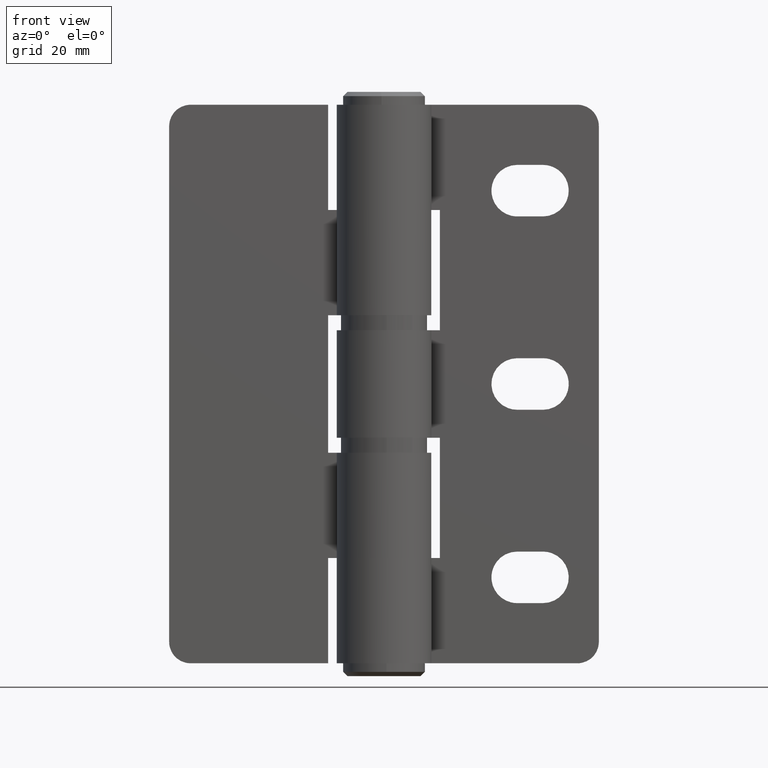
[diagram: clean part render]
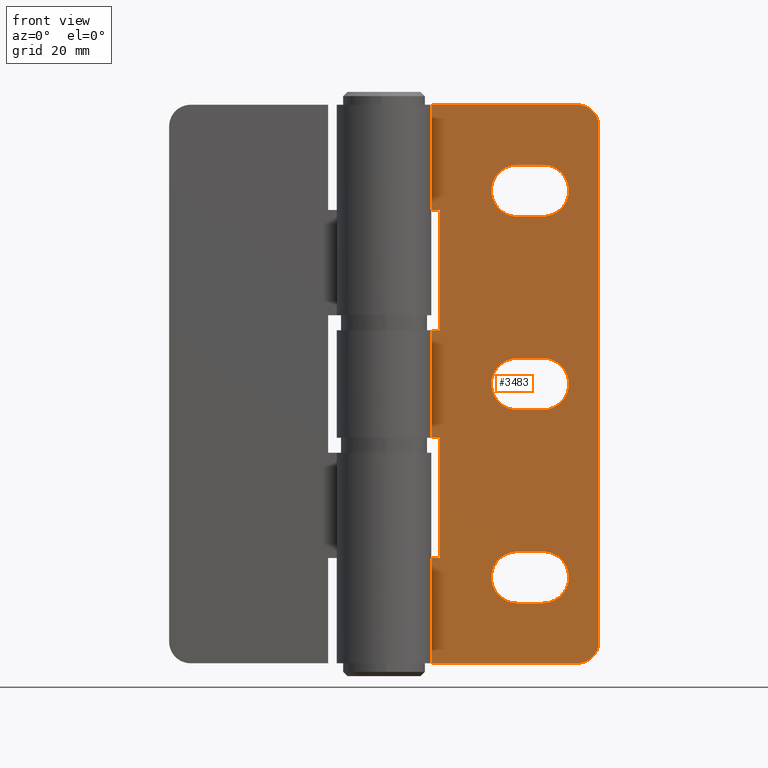
[diagram: same view with one face highlighted and labeled with its STEP entity id]
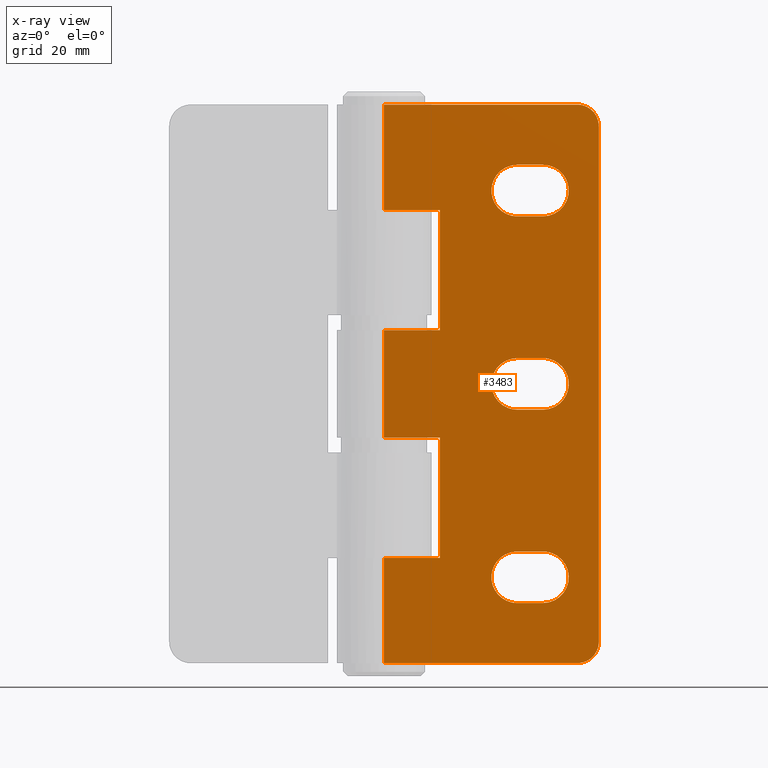
[diagram: x-ray of the same camera — body ghosted, the highlighted face saturated]
A machine part, front view. The second image highlights one B-rep face of the part: STEP entity #3483.
The next image is the same camera in x-ray: the body ghosted, the highlighted face saturated — about 0% of this face is hidden behind the body in this view.
In plain terms, the highlighted face is a freeform B-spline surface patch.
Its self-contained STEP definition (entity closure, byte-faithful):
#2173=CARTESIAN_POINT('',(-8.881784E-016,6.0,77.500000000000000));
#2174=VERTEX_POINT('',#2173);
#2175=CARTESIAN_POINT('',(13.0,6.0,77.500000000000000));
#2176=VERTEX_POINT('',#2175);
#2177=CARTESIAN_POINT('',(-8.881784E-016,6.0,77.500000000000000));
#2178=CARTESIAN_POINT('',(13.0,6.0,77.500000000000000));
#2179=QUASI_UNIFORM_CURVE('',1,(#2177,#2178),.UNSPECIFIED.,.F.,.U.);
#2180=EDGE_CURVE('',#2174,#2176,#2179,.T.);
#2251=CARTESIAN_POINT('',(13.0,6.0,105.500000000000000));
#2252=VERTEX_POINT('',#2251);
#2253=CARTESIAN_POINT('',(13.0,6.0,77.500000000000000));
#2254=CARTESIAN_POINT('',(13.0,6.0,105.500000000000000));
#2255=QUASI_UNIFORM_CURVE('',1,(#2253,#2254),.UNSPECIFIED.,.F.,.U.);
#2256=EDGE_CURVE('',#2176,#2252,#2255,.T.);
#2279=CARTESIAN_POINT('',(-8.881784E-016,6.0,105.500000000000000));
#2280=VERTEX_POINT('',#2279);
#2281=CARTESIAN_POINT('',(13.0,6.0,105.500000000000000));
#2282=CARTESIAN_POINT('',(-8.881784E-016,6.0,105.500000000000000));
#2283=QUASI_UNIFORM_CURVE('',1,(#2281,#2282),.UNSPECIFIED.,.F.,.U.);
#2284=EDGE_CURVE('',#2252,#2280,#2283,.T.);
#2379=CARTESIAN_POINT('',(-8.881784E-016,6.0,24.500000000000000));
#2380=VERTEX_POINT('',#2379);
#2400=CARTESIAN_POINT('',(13.0,6.0,24.500000000000000));
#2401=VERTEX_POINT('',#2400);
#2402=CARTESIAN_POINT('',(-8.881784E-016,6.0,24.500000000000000));
#2403=CARTESIAN_POINT('',(13.0,6.0,24.500000000000000));
#2404=QUASI_UNIFORM_CURVE('',1,(#2402,#2403),.UNSPECIFIED.,.F.,.U.);
#2405=EDGE_CURVE('',#2380,#2401,#2404,.T.);
#2427=CARTESIAN_POINT('',(13.0,6.0,52.500000000000000));
#2428=VERTEX_POINT('',#2427);
#2429=CARTESIAN_POINT('',(13.0,6.0,24.500000000000000));
#2430=CARTESIAN_POINT('',(13.0,6.0,52.500000000000000));
#2431=QUASI_UNIFORM_CURVE('',1,(#2429,#2430),.UNSPECIFIED.,.F.,.U.);
#2432=EDGE_CURVE('',#2401,#2428,#2431,.T.);
#2455=CARTESIAN_POINT('',(-8.881784E-016,6.0,52.500000000000000));
#2456=VERTEX_POINT('',#2455);
#2457=CARTESIAN_POINT('',(13.0,6.0,52.500000000000000));
#2458=CARTESIAN_POINT('',(-8.881784E-016,6.0,52.500000000000000));
#2459=QUASI_UNIFORM_CURVE('',1,(#2457,#2458),.UNSPECIFIED.,.F.,.U.);
#2460=EDGE_CURVE('',#2428,#2456,#2459,.T.);
#2557=CARTESIAN_POINT('',(37.0,6.0,104.0));
#2558=VERTEX_POINT('',#2557);
#2564=CARTESIAN_POINT('',(36.999999685840748,6.0,116.0));
#2565=VERTEX_POINT('',#2564);
#2566=CARTESIAN_POINT('',(37.0,6.0,104.0));
#2567=CARTESIAN_POINT('',(40.464101684950919,6.0,103.999999999999990));
#2568=CARTESIAN_POINT('',(42.196152475066498,6.0,107.000000090689990));
#2569=CARTESIAN_POINT('',(43.928203265182105,6.0,110.000000181379950));
#2570=CARTESIAN_POINT('',(42.196152317986872,6.0,113.000000181379900));
#2571=CARTESIAN_POINT('',(40.464101370791653,6.0,116.000000181379890));
#2572=CARTESIAN_POINT('',(36.999999685840748,6.0,116.0));
#2580=(BOUNDED_CURVE()B_SPLINE_CURVE(2,(#2566,#2567,#2568,#2569,#2570,#2571,#2572),.UNSPECIFIED.,.F.,.U.)B_SPLINE_CURVE_WITH_KNOTS((3,2,2,3),(0.0,0.333333333333333,0.666666666666667,1.0),.UNSPECIFIED.)CURVE()GEOMETRIC_REPRESENTATION_ITEM()RATIONAL_B_SPLINE_CURVE((1.0,0.866025399421116,1.0,0.866025399421116,1.0,0.866025399421116,1.0))REPRESENTATION_ITEM(''));
#2581=EDGE_CURVE('',#2558,#2565,#2580,.T.);
#2603=CARTESIAN_POINT('',(31.000000104719749,6.0,104.0));
#2604=VERTEX_POINT('',#2603);
#2610=CARTESIAN_POINT('',(31.000000104719749,6.0,104.0));
#2611=CARTESIAN_POINT('',(37.0,6.0,104.0));
#2612=QUASI_UNIFORM_CURVE('',1,(#2610,#2611),.UNSPECIFIED.,.F.,.U.);
#2613=EDGE_CURVE('',#2604,#2558,#2612,.T.);
#2654=CARTESIAN_POINT('',(30.999999685840748,6.0,116.0));
#2655=VERTEX_POINT('',#2654);
#2661=CARTESIAN_POINT('',(30.999999685840748,6.0,116.0));
#2662=CARTESIAN_POINT('',(24.999999790560516,6.000000000000001,115.999999685840750));
#2663=CARTESIAN_POINT('',(25.0,6.0,109.999999790560490));
#2664=CARTESIAN_POINT('',(25.000000209439499,6.000000000000001,103.999999895280250));
#2665=CARTESIAN_POINT('',(31.000000104719749,6.0,104.0));
#2673=(BOUNDED_CURVE()B_SPLINE_CURVE(2,(#2661,#2662,#2663,#2664,#2665),.UNSPECIFIED.,.F.,.U.)B_SPLINE_CURVE_WITH_KNOTS((3,2,3),(0.0,0.500000000000000,1.0),.UNSPECIFIED.)CURVE()GEOMETRIC_REPRESENTATION_ITEM()RATIONAL_B_SPLINE_CURVE((1.0,0.707106787357218,1.0,0.707106787357218,1.0))REPRESENTATION_ITEM(''));
#2674=EDGE_CURVE('',#2655,#2604,#2673,.T.);
#2691=CARTESIAN_POINT('',(36.999999685840748,6.0,116.0));
#2692=CARTESIAN_POINT('',(30.999999685840748,6.0,116.0));
#2693=QUASI_UNIFORM_CURVE('',1,(#2691,#2692),.UNSPECIFIED.,.F.,.U.);
#2694=EDGE_CURVE('',#2565,#2655,#2693,.T.);
#2714=CARTESIAN_POINT('',(31.000000104719749,6.0,59.0));
#2715=VERTEX_POINT('',#2714);
#2721=CARTESIAN_POINT('',(37.0,6.0,59.0));
#2722=VERTEX_POINT('',#2721);
#2723=CARTESIAN_POINT('',(31.000000104719749,6.0,59.0));
#2724=CARTESIAN_POINT('',(37.0,6.0,59.0));
#2725=QUASI_UNIFORM_CURVE('',1,(#2723,#2724),.UNSPECIFIED.,.F.,.U.);
#2726=EDGE_CURVE('',#2715,#2722,#2725,.T.);
#2773=CARTESIAN_POINT('',(31.0,6.0,71.0));
#2774=VERTEX_POINT('',#2773);
#2780=CARTESIAN_POINT('',(31.0,6.0,71.000000000000014));
#2781=CARTESIAN_POINT('',(27.535898361591190,6.000000000000001,71.000000000000014));
#2782=CARTESIAN_POINT('',(25.803847559840079,6.0,67.999999969770016));
#2783=CARTESIAN_POINT('',(24.071796758088958,6.000000000000001,64.999999939540047));
#2784=CARTESIAN_POINT('',(25.803847612199949,6.0,61.999999939540032));
#2785=CARTESIAN_POINT('',(27.535898466310933,6.000000000000001,58.999999939540018));
#2786=CARTESIAN_POINT('',(31.000000104719749,6.0,59.000000000000007));
#2794=(BOUNDED_CURVE()B_SPLINE_CURVE(2,(#2780,#2781,#2782,#2783,#2784,#2785,#2786),.UNSPECIFIED.,.F.,.U.)B_SPLINE_CURVE_WITH_KNOTS((3,2,2,3),(0.0,0.333333333333333,0.666666666666667,1.0),.UNSPECIFIED.)CURVE()GEOMETRIC_REPRESENTATION_ITEM()RATIONAL_B_SPLINE_CURVE((1.0,0.866025402329998,1.0,0.866025402329998,1.0,0.866025402329998,1.0))REPRESENTATION_ITEM(''));
#2795=EDGE_CURVE('',#2774,#2715,#2794,.T.);
#2813=CARTESIAN_POINT('',(37.0,6.0,71.0));
#2814=VERTEX_POINT('',#2813);
#2820=CARTESIAN_POINT('',(37.0,6.0,71.0));
#2821=CARTESIAN_POINT('',(31.0,6.0,71.0));
#2822=QUASI_UNIFORM_CURVE('',1,(#2820,#2821),.UNSPECIFIED.,.F.,.U.);
#2823=EDGE_CURVE('',#2814,#2774,#2822,.T.);
#2863=CARTESIAN_POINT('',(37.0,6.0,59.000000000000007));
#2864=CARTESIAN_POINT('',(42.999999999999993,6.0,59.0));
#2865=CARTESIAN_POINT('',(43.0,6.0,65.0));
#2866=CARTESIAN_POINT('',(42.999999999999993,6.0,71.000000000000014));
#2867=CARTESIAN_POINT('',(37.0,6.0,71.000000000000014));
#2875=(BOUNDED_CURVE()B_SPLINE_CURVE(2,(#2863,#2864,#2865,#2866,#2867),.UNSPECIFIED.,.F.,.U.)B_SPLINE_CURVE_WITH_KNOTS((3,2,3),(0.0,0.500000000000000,1.0),.UNSPECIFIED.)CURVE()GEOMETRIC_REPRESENTATION_ITEM()RATIONAL_B_SPLINE_CURVE((1.0,0.707106781186548,1.0,0.707106781186548,1.0))REPRESENTATION_ITEM(''));
#2876=EDGE_CURVE('',#2722,#2814,#2875,.T.);
#2919=CARTESIAN_POINT('',(30.999999685840748,6.0,26.0));
#2920=VERTEX_POINT('',#2919);
#2926=CARTESIAN_POINT('',(31.0,6.0,14.0));
#2927=VERTEX_POINT('',#2926);
#2928=CARTESIAN_POINT('',(30.999999685840748,6.0,25.999999999999989));
#2929=CARTESIAN_POINT('',(24.999999842920381,6.000000000000001,25.999999685840752));
#2930=CARTESIAN_POINT('',(25.0,6.0,19.999999842920381));
#2931=CARTESIAN_POINT('',(25.000000157079619,6.000000000000001,13.999999999999998));
#2932=CARTESIAN_POINT('',(31.0,6.0,14.0));
#2940=(BOUNDED_CURVE()B_SPLINE_CURVE(2,(#2928,#2929,#2930,#2931,#2932),.UNSPECIFIED.,.F.,.U.)B_SPLINE_CURVE_WITH_KNOTS((3,2,3),(0.0,0.500000000000000,1.0),.UNSPECIFIED.)CURVE()GEOMETRIC_REPRESENTATION_ITEM()RATIONAL_B_SPLINE_CURVE((1.0,0.707106790442553,1.0,0.707106790442553,1.0))REPRESENTATION_ITEM(''));
#2941=EDGE_CURVE('',#2920,#2927,#2940,.T.);
#2964=CARTESIAN_POINT('',(36.999999685840748,6.0,14.0));
#2965=VERTEX_POINT('',#2964);
#2966=CARTESIAN_POINT('',(36.999999685840748,6.0,14.0));
#2967=CARTESIAN_POINT('',(31.0,6.0,14.0));
#2968=QUASI_UNIFORM_CURVE('',1,(#2966,#2967),.UNSPECIFIED.,.F.,.U.);
#2969=EDGE_CURVE('',#2965,#2927,#2968,.T.);
#3017=CARTESIAN_POINT('',(36.999999685840748,6.0,26.0));
#3018=VERTEX_POINT('',#3017);
#3019=CARTESIAN_POINT('',(36.999999685840748,6.0,14.000000000000011));
#3020=CARTESIAN_POINT('',(40.464101440604850,6.000000000000001,13.999999818620079));
#3021=CARTESIAN_POINT('',(42.196152370346752,6.0,16.999999909310041));
#3022=CARTESIAN_POINT('',(43.928203300088676,6.000000000000001,19.999999999999993));
#3023=CARTESIAN_POINT('',(42.196152370346752,6.0,23.000000090689959));
#3024=CARTESIAN_POINT('',(40.464101440604850,6.000000000000001,26.000000181379924));
#3025=CARTESIAN_POINT('',(36.999999685840748,6.0,25.999999999999989));
#3033=(BOUNDED_CURVE()B_SPLINE_CURVE(2,(#3019,#3020,#3021,#3022,#3023,#3024,#3025),.UNSPECIFIED.,.F.,.U.)B_SPLINE_CURVE_WITH_KNOTS((3,2,2,3),(0.0,0.333333333333333,0.666666666666667,1.0),.UNSPECIFIED.)CURVE()GEOMETRIC_REPRESENTATION_ITEM()RATIONAL_B_SPLINE_CURVE((1.0,0.866025395057793,1.0,0.866025395057793,1.0,0.866025395057793,1.0))REPRESENTATION_ITEM(''));
#3034=EDGE_CURVE('',#2965,#3018,#3033,.T.);
#3055=CARTESIAN_POINT('',(30.999999685840748,6.0,26.0));
#3056=CARTESIAN_POINT('',(36.999999685840748,6.0,26.0));
#3057=QUASI_UNIFORM_CURVE('',1,(#3055,#3056),.UNSPECIFIED.,.F.,.U.);
#3058=EDGE_CURVE('',#2920,#3018,#3057,.T.);
#3095=CARTESIAN_POINT('',(50.0,6.0,5.0));
#3096=VERTEX_POINT('',#3095);
#3102=CARTESIAN_POINT('',(45.0,6.0,0.0));
#3103=VERTEX_POINT('',#3102);
#3104=CARTESIAN_POINT('',(45.0,6.0,0.0));
#3105=CARTESIAN_POINT('',(49.999999999999986,6.0,0.0));
#3106=CARTESIAN_POINT('',(49.999999999999993,6.0,5.0));
#3114=(BOUNDED_CURVE()B_SPLINE_CURVE(2,(#3104,#3105,#3106),.UNSPECIFIED.,.F.,.U.)CURVE()GEOMETRIC_REPRESENTATION_ITEM()QUASI_UNIFORM_CURVE()RATIONAL_B_SPLINE_CURVE((1.0,0.707106781186548,1.0))REPRESENTATION_ITEM(''));
#3115=EDGE_CURVE('',#3103,#3096,#3114,.T.);
#3156=CARTESIAN_POINT('',(45.0,6.0,130.0));
#3157=VERTEX_POINT('',#3156);
#3163=CARTESIAN_POINT('',(50.0,6.0,125.0));
#3164=VERTEX_POINT('',#3163);
#3165=CARTESIAN_POINT('',(49.999999999999993,6.0,125.0));
#3166=CARTESIAN_POINT('',(49.999999999999986,6.0,130.0));
#3167=CARTESIAN_POINT('',(45.0,6.0,130.0));
#3175=(BOUNDED_CURVE()B_SPLINE_CURVE(2,(#3165,#3166,#3167),.UNSPECIFIED.,.F.,.U.)CURVE()GEOMETRIC_REPRESENTATION_ITEM()QUASI_UNIFORM_CURVE()RATIONAL_B_SPLINE_CURVE((1.0,0.707106781186548,1.0))REPRESENTATION_ITEM(''));
#3176=EDGE_CURVE('',#3164,#3157,#3175,.T.);
#3199=CARTESIAN_POINT('',(-8.881784E-016,6.0,0.0));
#3200=VERTEX_POINT('',#3199);
#3201=CARTESIAN_POINT('',(45.0,6.0,0.0));
#3202=CARTESIAN_POINT('',(-8.881784E-016,6.0,0.0));
#3203=QUASI_UNIFORM_CURVE('',1,(#3201,#3202),.UNSPECIFIED.,.F.,.U.);
#3204=EDGE_CURVE('',#3103,#3200,#3203,.T.);
#3261=CARTESIAN_POINT('',(-8.881784E-016,6.0,130.0));
#3262=VERTEX_POINT('',#3261);
#3263=CARTESIAN_POINT('',(45.0,6.0,130.0));
#3264=CARTESIAN_POINT('',(-8.881784E-016,6.0,130.0));
#3265=QUASI_UNIFORM_CURVE('',1,(#3263,#3264),.UNSPECIFIED.,.F.,.U.);
#3266=EDGE_CURVE('',#3157,#3262,#3265,.T.);
#3368=CARTESIAN_POINT('',(-8.881784E-016,6.0,24.500000000000000));
#3369=CARTESIAN_POINT('',(-8.881784E-016,6.0,0.0));
#3370=QUASI_UNIFORM_CURVE('',1,(#3368,#3369),.UNSPECIFIED.,.F.,.U.);
#3371=EDGE_CURVE('',#2380,#3200,#3370,.T.);
#3384=CARTESIAN_POINT('',(50.0,6.0,125.0));
#3385=CARTESIAN_POINT('',(50.0,6.0,5.0));
#3386=QUASI_UNIFORM_CURVE('',1,(#3384,#3385),.UNSPECIFIED.,.F.,.U.);
#3387=EDGE_CURVE('',#3164,#3096,#3386,.T.);
#3436=CARTESIAN_POINT('',(-2.497499903090299,6.0,136.493499748034790));
#3437=CARTESIAN_POINT('',(-2.497499903090299,6.0,-6.493503234906493));
#3438=CARTESIAN_POINT('',(52.497501244194808,6.0,136.493499748034790));
#3439=CARTESIAN_POINT('',(52.497501244194808,6.0,-6.493503234906493));
#3440=B_SPLINE_SURFACE_WITH_KNOTS('',1,1,((#3436,#3438),(#3437,#3439)),.UNSPECIFIED.,.F.,.F.,.U.,(2,2),(2,2),(0.0,142.987002982941310),(0.0,54.995001147285109),.UNSPECIFIED.);
#3441=ORIENTED_EDGE('',*,*,#2284,.F.);
#3442=ORIENTED_EDGE('',*,*,#2256,.F.);
#3443=ORIENTED_EDGE('',*,*,#2180,.F.);
#3444=CARTESIAN_POINT('',(-8.881784E-016,6.0,77.500000000000000));
#3445=CARTESIAN_POINT('',(-8.881784E-016,6.0,52.500000000000000));
#3446=QUASI_UNIFORM_CURVE('',1,(#3444,#3445),.UNSPECIFIED.,.F.,.U.);
#3447=EDGE_CURVE('',#2174,#2456,#3446,.T.);
#3448=ORIENTED_EDGE('',*,*,#3447,.T.);
#3449=ORIENTED_EDGE('',*,*,#2460,.F.);
#3450=ORIENTED_EDGE('',*,*,#2432,.F.);
#3451=ORIENTED_EDGE('',*,*,#2405,.F.);
#3452=ORIENTED_EDGE('',*,*,#3371,.T.);
#3453=ORIENTED_EDGE('',*,*,#3204,.F.);
#3454=ORIENTED_EDGE('',*,*,#3115,.T.);
#3455=ORIENTED_EDGE('',*,*,#3387,.F.);
#3456=ORIENTED_EDGE('',*,*,#3176,.T.);
#3457=ORIENTED_EDGE('',*,*,#3266,.T.);
#3458=CARTESIAN_POINT('',(-8.881784E-016,6.0,130.0));
#3459=CARTESIAN_POINT('',(-8.881784E-016,6.0,105.500000000000000));
#3460=QUASI_UNIFORM_CURVE('',1,(#3458,#3459),.UNSPECIFIED.,.F.,.U.);
#3461=EDGE_CURVE('',#3262,#2280,#3460,.T.);
#3462=ORIENTED_EDGE('',*,*,#3461,.T.);
#3463=EDGE_LOOP('',(#3441,#3442,#3443,#3448,#3449,#3450,#3451,#3452,#3453,#3454,#3455,#3456,#3457,#3462));
#3464=FACE_OUTER_BOUND('',#3463,.T.);
#3465=ORIENTED_EDGE('',*,*,#2823,.F.);
#3466=ORIENTED_EDGE('',*,*,#2876,.F.);
#3467=ORIENTED_EDGE('',*,*,#2726,.F.);
#3468=ORIENTED_EDGE('',*,*,#2795,.F.);
#3469=EDGE_LOOP('',(#3465,#3466,#3467,#3468));
#3470=FACE_BOUND('',#3469,.T.);
#3471=ORIENTED_EDGE('',*,*,#3058,.T.);
#3472=ORIENTED_EDGE('',*,*,#3034,.F.);
#3473=ORIENTED_EDGE('',*,*,#2969,.T.);
#3474=ORIENTED_EDGE('',*,*,#2941,.F.);
#3475=EDGE_LOOP('',(#3471,#3472,#3473,#3474));
#3476=FACE_BOUND('',#3475,.T.);
#3477=ORIENTED_EDGE('',*,*,#2674,.F.);
#3478=ORIENTED_EDGE('',*,*,#2694,.F.);
#3479=ORIENTED_EDGE('',*,*,#2581,.F.);
#3480=ORIENTED_EDGE('',*,*,#2613,.F.);
#3481=EDGE_LOOP('',(#3477,#3478,#3479,#3480));
#3482=FACE_BOUND('',#3481,.T.);
#3483=ADVANCED_FACE('',(#3464,#3470,#3476,#3482),#3440,.T.);